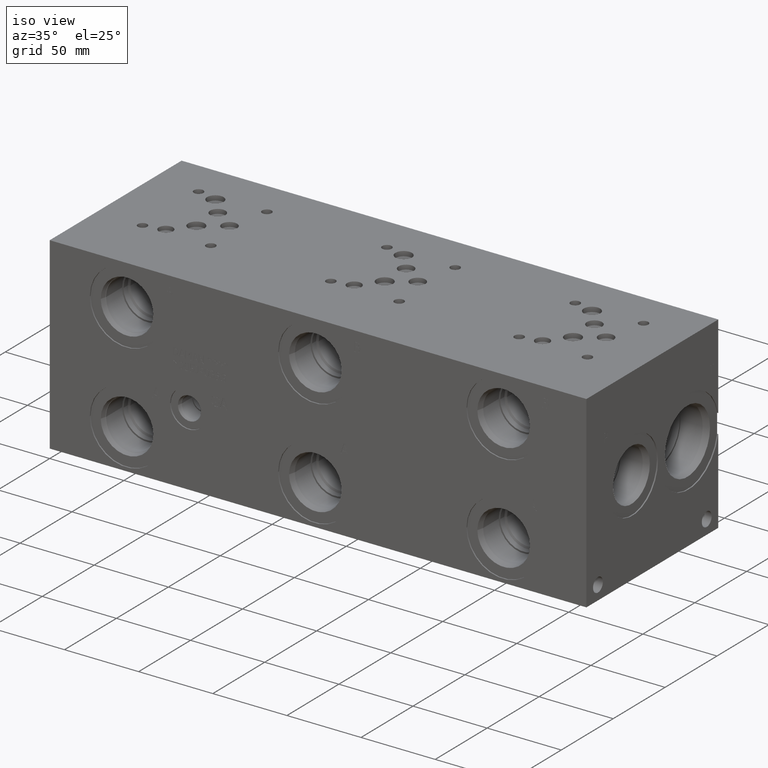
[diagram: clean part render]
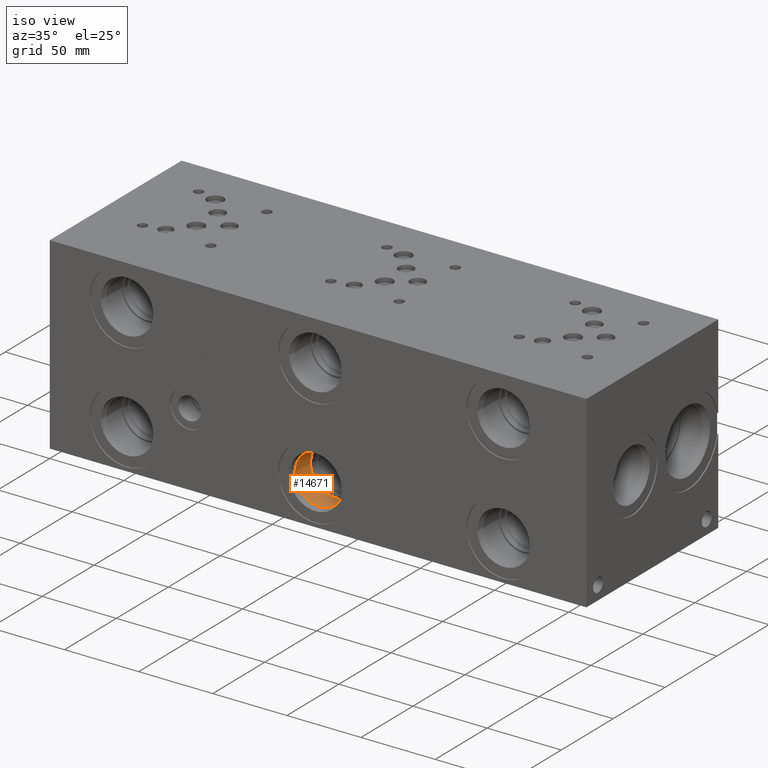
[diagram: same view with one face highlighted and labeled with its STEP entity id]
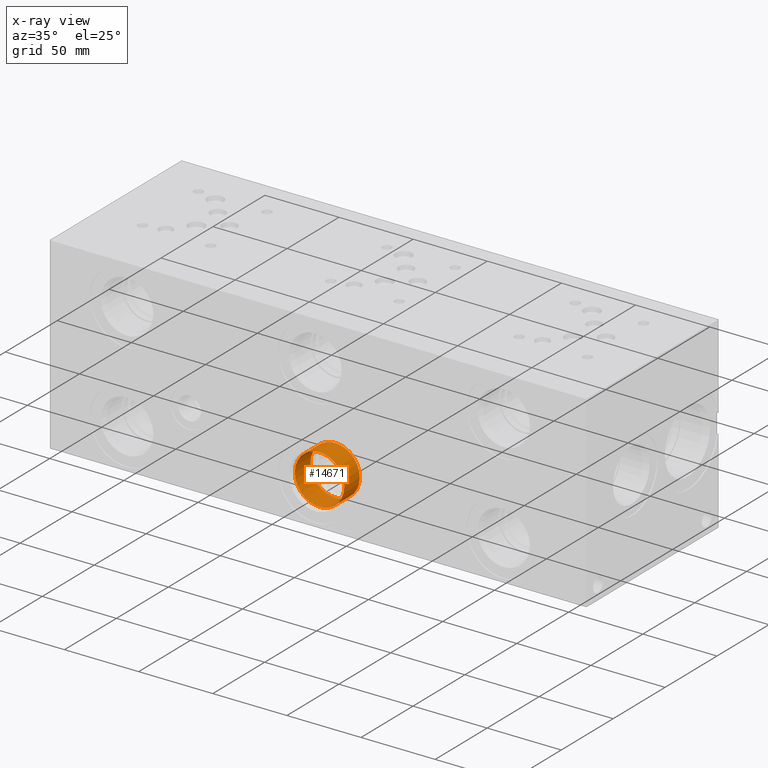
[diagram: x-ray of the same camera — body ghosted, the highlighted face saturated]
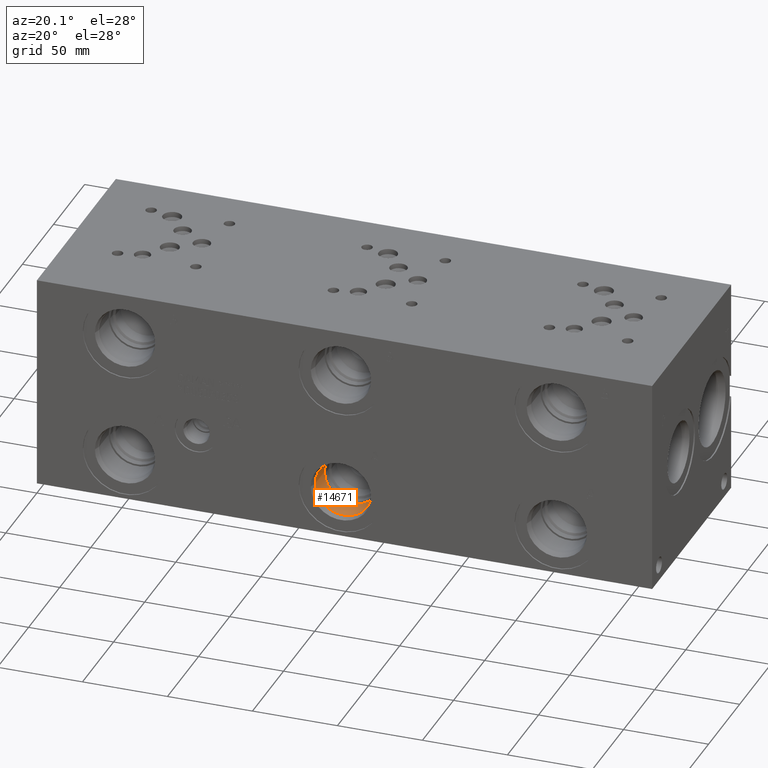
[diagram: same view with one face highlighted and labeled with its STEP entity id]
A machine part, iso view. The second image highlights one B-rep face of the part: STEP entity #14671.
The next image is the same camera in x-ray: the body ghosted, the highlighted face saturated — about 0% of this face is hidden behind the body in this view.
A second angle (auxiliary view) of the same face is appended — the face is thin or edge-on in the first view.
In plain terms, the highlighted cylindrical surface (bore or boss wall) has radius 16.6751 mm, axis along (0, -1, 0).
Its self-contained STEP definition (entity closure, byte-faithful):
#49=CYLINDRICAL_SURFACE('',#15418,16.6751);
#349=CIRCLE('',#15415,16.6751);
#350=CIRCLE('',#15416,16.6751);
#352=CIRCLE('',#15419,16.6751);
#1896=FACE_OUTER_BOUND('',#2746,.T.);
#2746=EDGE_LOOP('',(#12359,#12360,#12361,#12362,#12363));
#4124=LINE('',#24932,#5423);
#5423=VECTOR('',#18146,16.6751);
#6688=VERTEX_POINT('',#24923);
#6689=VERTEX_POINT('',#24924);
#6691=VERTEX_POINT('',#24930);
#8652=EDGE_CURVE('',#6688,#6689,#349,.T.);
#8653=EDGE_CURVE('',#6689,#6688,#350,.T.);
#8655=EDGE_CURVE('',#6691,#6691,#352,.T.);
#8656=EDGE_CURVE('',#6691,#6689,#4124,.T.);
#12359=ORIENTED_EDGE('',*,*,#8655,.F.);
#12360=ORIENTED_EDGE('',*,*,#8656,.T.);
#12361=ORIENTED_EDGE('',*,*,#8652,.F.);
#12362=ORIENTED_EDGE('',*,*,#8653,.F.);
#12363=ORIENTED_EDGE('',*,*,#8656,.F.);
#14671=ADVANCED_FACE('',(#1896),#49,.F.);
#15415=AXIS2_PLACEMENT_3D('',#24925,#18136,#18137);
#15416=AXIS2_PLACEMENT_3D('',#24926,#18138,#18139);
#15418=AXIS2_PLACEMENT_3D('',#24929,#18142,#18143);
#15419=AXIS2_PLACEMENT_3D('',#24931,#18144,#18145);
#18136=DIRECTION('center_axis',(0.,-1.,0.));
#18137=DIRECTION('ref_axis',(1.,0.,0.));
#18138=DIRECTION('center_axis',(0.,-1.,0.));
#18139=DIRECTION('ref_axis',(1.,0.,0.));
#18142=DIRECTION('center_axis',(0.,-1.,0.));
#18143=DIRECTION('ref_axis',(1.,0.,0.));
#18144=DIRECTION('center_axis',(0.,1.,0.));
#18145=DIRECTION('ref_axis',(1.,0.,0.));
#18146=DIRECTION('',(0.,1.,0.));
#24923=CARTESIAN_POINT('',(195.2625,19.8374,26.9748));
#24924=CARTESIAN_POINT('',(161.9123,19.8374,26.9748));
#24925=CARTESIAN_POINT('Origin',(178.5874,19.8374,26.9748));
#24926=CARTESIAN_POINT('Origin',(178.5874,19.8374,26.9748));
#24929=CARTESIAN_POINT('Origin',(178.5874,9.9187,26.9748));
#24930=CARTESIAN_POINT('',(161.9123,4.8236788467706,26.9748));
#24931=CARTESIAN_POINT('Origin',(178.5874,4.8236788467706,26.9748));
#24932=CARTESIAN_POINT('',(161.9123,9.9187,26.9748));